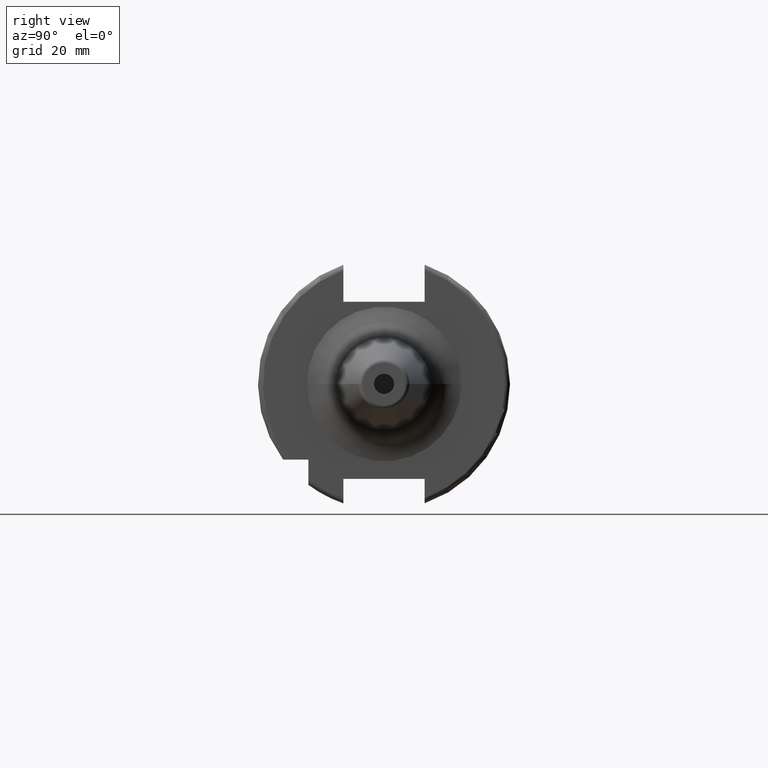
[diagram: clean part render]
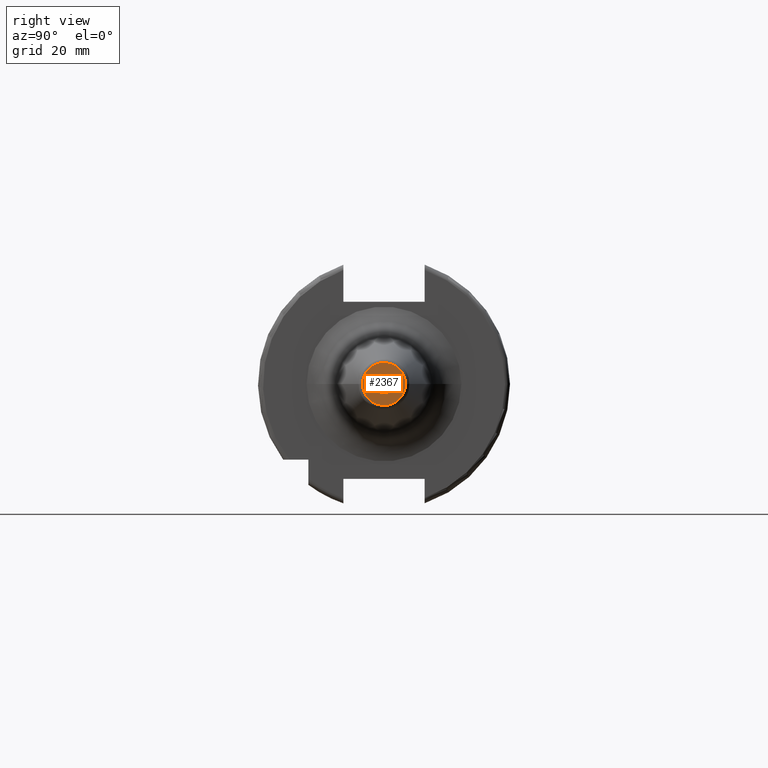
[diagram: same view with one face highlighted and labeled with its STEP entity id]
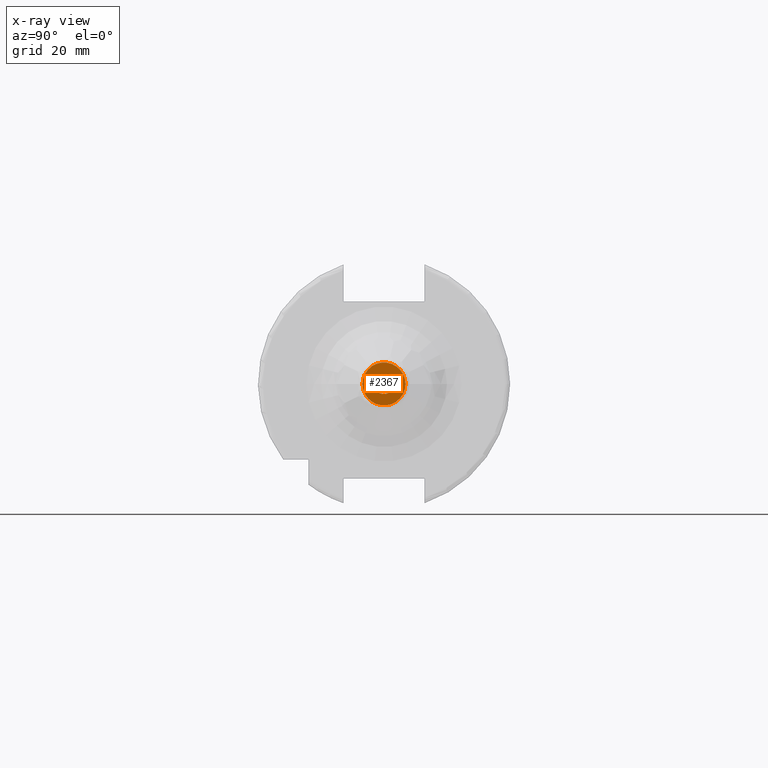
[diagram: x-ray of the same camera — body ghosted, the highlighted face saturated]
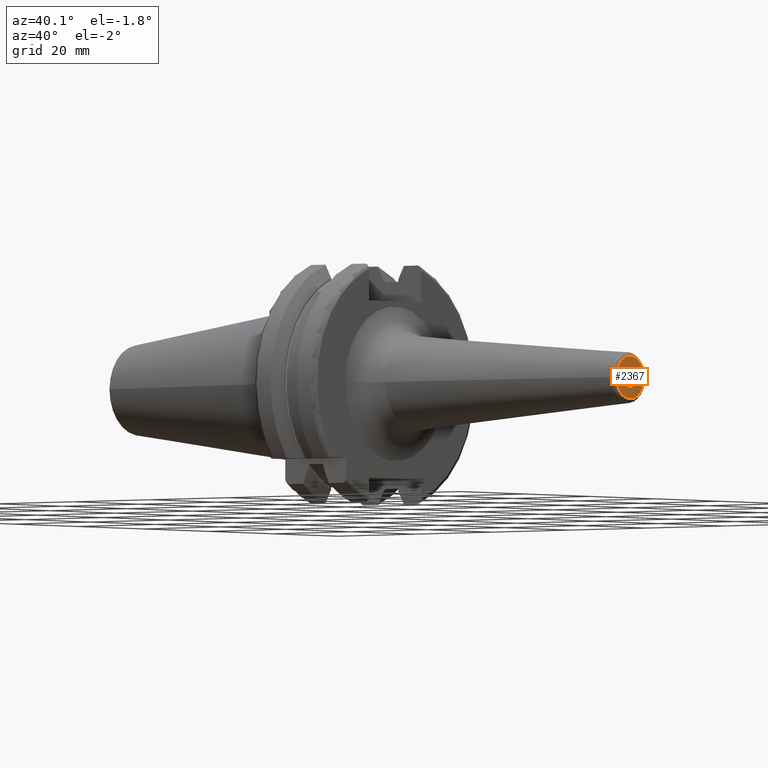
[diagram: same view with one face highlighted and labeled with its STEP entity id]
A machine part, right view. The second image highlights one B-rep face of the part: STEP entity #2367.
The next image is the same camera in x-ray: the body ghosted, the highlighted face saturated — about 0% of this face is hidden behind the body in this view.
A second angle (auxiliary view) of the same face is appended — the face is thin or edge-on in the first view.
In plain terms, the highlighted planar face has unit normal (1, 0, 0).
Its self-contained STEP definition (entity closure, byte-faithful):
#890=CARTESIAN_POINT('',(8.E1,0.E0,0.E0));
#891=DIRECTION('',(1.E0,0.E0,0.E0));
#892=DIRECTION('',(0.E0,1.E0,0.E0));
#893=AXIS2_PLACEMENT_3D('',#890,#891,#892);
#895=CARTESIAN_POINT('',(8.E1,0.E0,0.E0));
#896=DIRECTION('',(-1.E0,0.E0,0.E0));
#897=DIRECTION('',(0.E0,1.E0,0.E0));
#898=AXIS2_PLACEMENT_3D('',#895,#896,#897);
#900=CARTESIAN_POINT('',(8.E1,0.E0,0.E0));
#901=DIRECTION('',(-1.E0,0.E0,0.E0));
#902=DIRECTION('',(0.E0,1.E0,0.E0));
#903=AXIS2_PLACEMENT_3D('',#900,#901,#902);
#905=CARTESIAN_POINT('',(8.E1,0.E0,0.E0));
#906=DIRECTION('',(-1.E0,0.E0,0.E0));
#907=DIRECTION('',(0.E0,-1.E0,0.E0));
#908=AXIS2_PLACEMENT_3D('',#905,#906,#907);
#1357=CARTESIAN_POINT('',(8.E1,2.E0,0.E0));
#1359=VERTEX_POINT('',#1357);
#1361=CARTESIAN_POINT('',(8.E1,-2.E0,0.E0));
#1363=VERTEX_POINT('',#1361);
#1376=CARTESIAN_POINT('',(8.E1,4.260487606673E0,0.E0));
#1377=CARTESIAN_POINT('',(8.E1,-4.260487606673E0,0.E0));
#1378=VERTEX_POINT('',#1376);
#1379=VERTEX_POINT('',#1377);
#2352=CARTESIAN_POINT('',(8.E1,0.E0,0.E0));
#2353=DIRECTION('',(1.E0,0.E0,0.E0));
#2354=DIRECTION('',(0.E0,-1.E0,0.E0));
#2355=AXIS2_PLACEMENT_3D('',#2352,#2353,#2354);
#2356=PLANE('',#2355);
#2357=ORIENTED_EDGE('',*,*,#2334,.T.);
#2358=ORIENTED_EDGE('',*,*,#2319,.T.);
#2359=EDGE_LOOP('',(#2357,#2358));
#2360=FACE_OUTER_BOUND('',#2359,.F.);
#2362=ORIENTED_EDGE('',*,*,#2361,.T.);
#2364=ORIENTED_EDGE('',*,*,#2363,.F.);
#2365=EDGE_LOOP('',(#2362,#2364));
#2366=FACE_BOUND('',#2365,.F.);
#2367=ADVANCED_FACE('',(#2360,#2366),#2356,.T.);
#894=CIRCLE('',#893,2.E0);
#899=CIRCLE('',#898,2.E0);
#904=CIRCLE('',#903,4.260487606673E0);
#909=CIRCLE('',#908,4.260487606673E0);
#2319=EDGE_CURVE('',#1379,#1378,#909,.T.);
#2334=EDGE_CURVE('',#1378,#1379,#904,.T.);
#2361=EDGE_CURVE('',#1359,#1363,#894,.T.);
#2363=EDGE_CURVE('',#1359,#1363,#899,.T.);